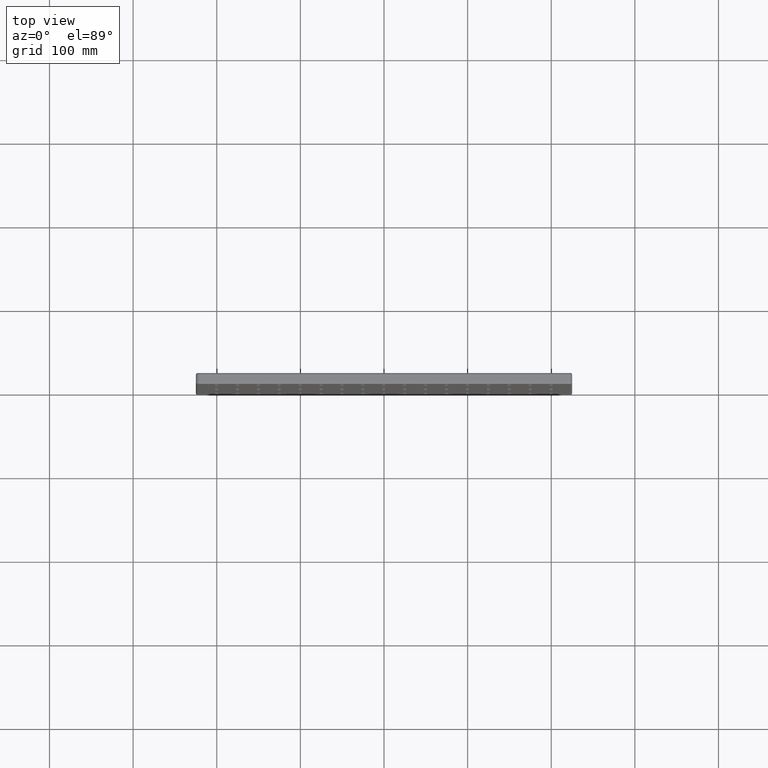
[diagram: clean part render]
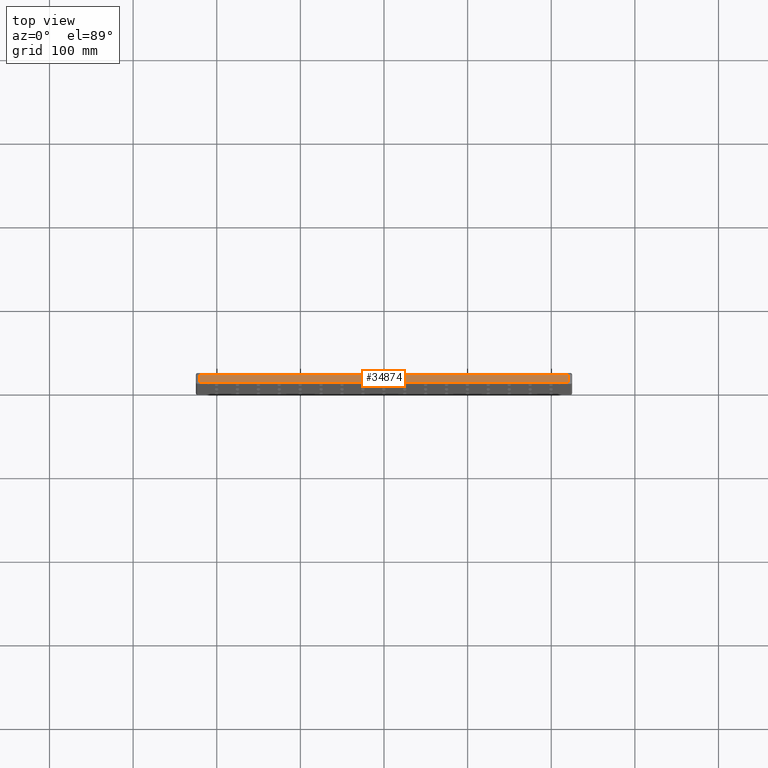
[diagram: same view with one face highlighted and labeled with its STEP entity id]
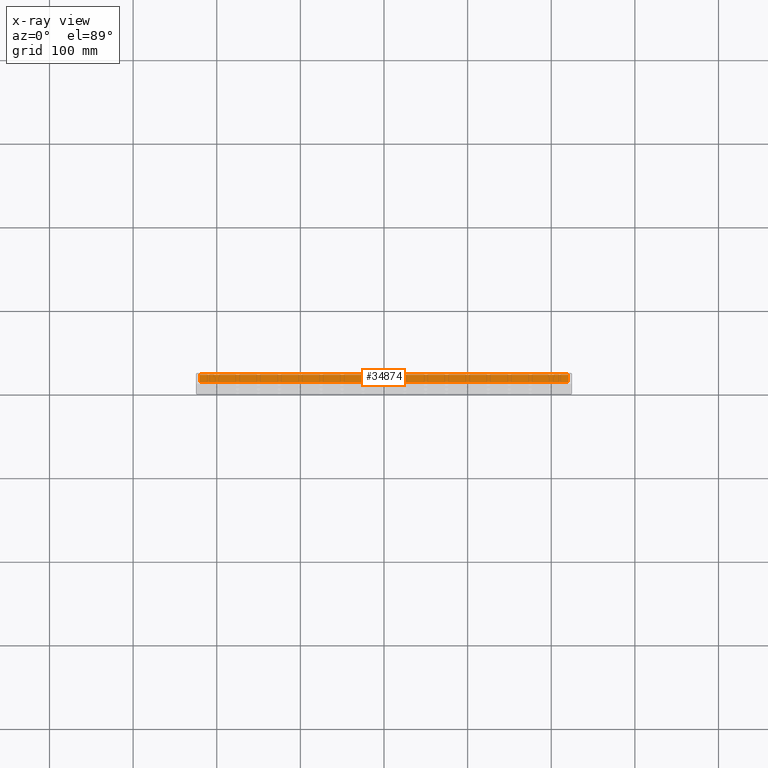
[diagram: x-ray of the same camera — body ghosted, the highlighted face saturated]
A machine part, top view. The second image highlights one B-rep face of the part: STEP entity #34874.
The next image is the same camera in x-ray: the body ghosted, the highlighted face saturated — about 0% of this face is hidden behind the body in this view.
In plain terms, the highlighted planar face has unit normal (0, 0, -1).
Its self-contained STEP definition (entity closure, byte-faithful):
#1788 = VECTOR ( 'NONE', #20465, 1000.000000000000000 ) ;
#4102 = DIRECTION ( 'NONE',  ( 0.000000000000000000, 0.000000000000000000, -1.000000000000000000 ) ) ;
#6989 = FACE_OUTER_BOUND ( 'NONE', #31560, .T. ) ;
#7833 = ORIENTED_EDGE ( 'NONE', *, *, #27717, .F. ) ;
#11614 = VECTOR ( 'NONE', #37564, 1000.000000000000000 ) ;
#12058 = VERTEX_POINT ( 'NONE', #19104 ) ;
#12546 = CARTESIAN_POINT ( 'NONE',  ( -220.0000000000000000, 13.00000000000000000, 375.0000000000000000 ) ) ;
#12967 = DIRECTION ( 'NONE',  ( -1.000000000000000000, 0.000000000000000000, -0.000000000000000000 ) ) ;
#13406 = VECTOR ( 'NONE', #31695, 1000.000000000000000 ) ;
#13481 = ORIENTED_EDGE ( 'NONE', *, *, #36288, .T. ) ;
#14587 = VERTEX_POINT ( 'NONE', #27123 ) ;
#15265 = EDGE_CURVE ( 'NONE', #28362, #28619, #20851, .T. ) ;
#17022 = CARTESIAN_POINT ( 'NONE',  ( -220.0000000000000000, 11.00000000000000000, 375.0000000000000000 ) ) ;
#17917 = VECTOR ( 'NONE', #24294, 1000.000000000000000 ) ;
#18742 = PLANE ( 'NONE',  #23233 ) ;
#18846 = ORIENTED_EDGE ( 'NONE', *, *, #15265, .T. ) ;
#19104 = CARTESIAN_POINT ( 'NONE',  ( -220.0000000000000000, 11.00000000000000000, 375.0000000000000000 ) ) ;
#19741 = LINE ( 'NONE', #17022, #13406 ) ;
#20465 = DIRECTION ( 'NONE',  ( 1.000000000000000000, -0.000000000000000000, 0.000000000000000000 ) ) ;
#20699 = ORIENTED_EDGE ( 'NONE', *, *, #30745, .T. ) ;
#20851 = LINE ( 'NONE', #37642, #1788 ) ;
#21830 = CARTESIAN_POINT ( 'NONE',  ( -220.0000000000000000, 13.00000000000000000, 375.0000000000000000 ) ) ;
#23233 = AXIS2_PLACEMENT_3D ( 'NONE', #21830, #4102, #12967 ) ;
#24294 = DIRECTION ( 'NONE',  ( -0.000000000000000000, -1.000000000000000000, -0.000000000000000000 ) ) ;
#27123 = CARTESIAN_POINT ( 'NONE',  ( 220.0000000000000000, 11.00000000000000000, 374.9999999999999432 ) ) ;
#27717 = EDGE_CURVE ( 'NONE', #14587, #28619, #28870, .T. ) ;
#28362 = VERTEX_POINT ( 'NONE', #36112 ) ;
#28619 = VERTEX_POINT ( 'NONE', #29129 ) ;
#28870 = LINE ( 'NONE', #33932, #11614 ) ;
#29129 = CARTESIAN_POINT ( 'NONE',  ( 220.0000000000000000, 2.000000000000003553, 374.9999999999999432 ) ) ;
#30745 = EDGE_CURVE ( 'NONE', #12058, #28362, #36447, .T. ) ;
#31560 = EDGE_LOOP ( 'NONE', ( #20699, #18846, #7833, #13481 ) ) ;
#31695 = DIRECTION ( 'NONE',  ( -1.000000000000000000, -0.000000000000000000, -0.000000000000000000 ) ) ;
#33932 = CARTESIAN_POINT ( 'NONE',  ( 220.0000000000000000, 13.00000000000000000, 374.9999999999999432 ) ) ;
#34874 = ADVANCED_FACE ( 'NONE', ( #6989 ), #18742, .F. ) ;
#36112 = CARTESIAN_POINT ( 'NONE',  ( -220.0000000000000000, 2.000000000000003553, 375.0000000000000000 ) ) ;
#36288 = EDGE_CURVE ( 'NONE', #14587, #12058, #19741, .T. ) ;
#36447 = LINE ( 'NONE', #12546, #17917 ) ;
#37564 = DIRECTION ( 'NONE',  ( -0.000000000000000000, -1.000000000000000000, -0.000000000000000000 ) ) ;
#37642 = CARTESIAN_POINT ( 'NONE',  ( -220.0000000000000000, 2.000000000000000000, 375.0000000000000000 ) ) ;